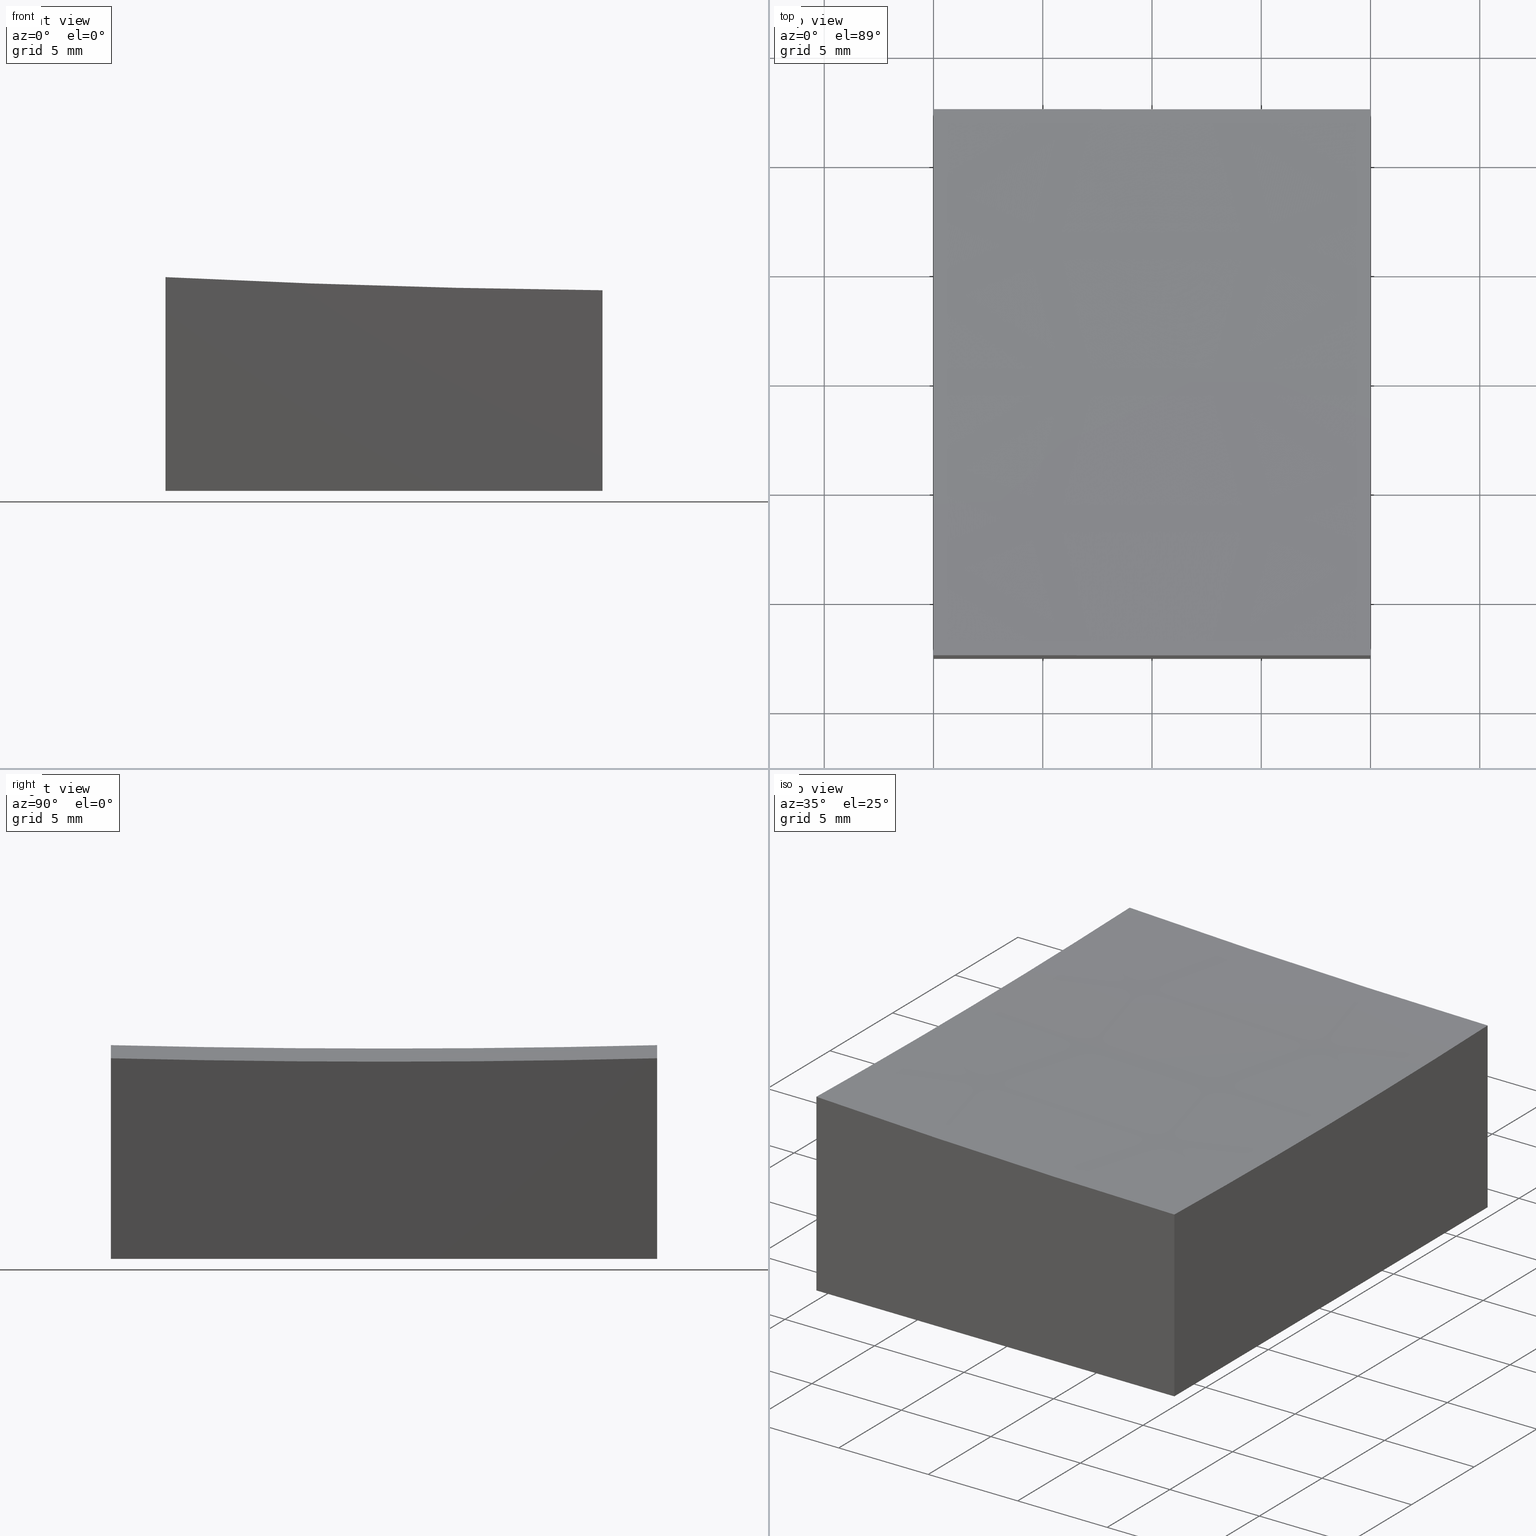
[diagram: canonical four-view strip — front | top / right | iso, engineering-drawing reading convention]
A machine part, canonical four-view strip (front | top / right | iso — engineering-drawing reading convention). The complete STEP part file that produces these views, byte-faithful:
ISO-10303-21;
HEADER;
FILE_DESCRIPTION (( 'STEP AP203' ),
    '1' );
FILE_NAME ('270648.step',
    '2024-12-24T02:22:21',
    ( '' ),
    ( '' ),
    'SwSTEP 2.0',
    'SolidWorks 2020',
    '' );
FILE_SCHEMA (( 'CONFIG_CONTROL_DESIGN' ));
ENDSEC;

DATA;
#1 = EDGE_LOOP ( 'NONE', ( #146, #249, #151, #34 ) ) ;
#2 = DIRECTION ( 'NONE',  ( 1.000000000000000000, 0.000000000000000000, 0.000000000000000000 ) ) ;
#3 = LINE ( 'NONE', #44, #67 ) ;
#4 = CC_DESIGN_APPROVAL ( #238, ( #178 ) ) ;
#5 = ADVANCED_FACE ( 'NONE', ( #215 ), #190, .F. ) ;
#6 = DIRECTION ( 'NONE',  ( 0.000000000000000000, 0.000000000000000000, 1.000000000000000000 ) ) ;
#7 = CARTESIAN_POINT ( 'NONE',  ( -9.999999999999998224, 12.49999999999999645, -10.00000000000000000 ) ) ;
#8 = PERSON ( 'δָ��', 'δָ��', 'δָ��', ('δָ��'), ('δָ��'), ('δָ��') ) ;
#9 = CC_DESIGN_PERSON_AND_ORGANIZATION_ASSIGNMENT ( #218, #105, ( #178 ) ) ;
#10 = CARTESIAN_POINT ( 'NONE',  ( -9.999999999999998224, -12.50000000000000355, -0.2181386928964412775 ) ) ;
#11 = DIRECTION ( 'NONE',  ( 0.000000000000000000, 0.000000000000000000, 1.000000000000000000 ) ) ;
#12 = EDGE_CURVE ( 'NONE', #236, #62, #24, .T. ) ;
#13 = CARTESIAN_POINT ( 'NONE',  ( 10.00000000000000178, -12.50000000000000000, -10.00000000000000000 ) ) ;
#14 = DIRECTION ( 'NONE',  ( 0.000000000000000000, 0.000000000000000000, -1.000000000000000000 ) ) ;
#15 = CIRCLE ( 'NONE', #145, 499.8437255783051114 ) ;
#16 = DIRECTION ( 'NONE',  ( -1.734723475976807094E-16, 1.000000000000000000, 0.000000000000000000 ) ) ;
#17 = EDGE_LOOP ( 'NONE', ( #276, #235, #233, #170 ) ) ;
#18 = EDGE_LOOP ( 'NONE', ( #113, #21, #187, #148, #273 ) ) ;
#19 = COORDINATED_UNIVERSAL_TIME_OFFSET ( 8, 0, .AHEAD. ) ;
#20 = VECTOR ( 'NONE', #200, 1000.000000000000000 ) ;
#21 = ORIENTED_EDGE ( 'NONE', *, *, #73, .T. ) ;
#22 = PERSON_AND_ORGANIZATION ( #8, #46 ) ;
#23 = CARTESIAN_POINT ( 'NONE',  ( 10.00000000000000178, -12.50000000000000000, -0.8187171365233725240 ) ) ;
#24 = CIRCLE ( 'NONE', #27, 499.8437255783051114 ) ;
#25 = DIRECTION ( 'NONE',  ( -1.000000000000000000, 0.000000000000000000, 0.000000000000000000 ) ) ;
#26 = CC_DESIGN_DATE_AND_TIME_ASSIGNMENT ( #86, #216, ( #178 ) ) ;
#27 = AXIS2_PLACEMENT_3D ( 'NONE', #111, #16, #90 ) ;
#28 = DIRECTION ( 'NONE',  ( 1.000000000000000000, 1.734723475976807094E-16, 0.000000000000000000 ) ) ;
#29 = DIRECTION ( 'NONE',  ( 1.000000000000000000, 0.000000000000000000, 0.000000000000000000 ) ) ;
#30 = CARTESIAN_POINT ( 'NONE',  ( 15.00000000000006395, 0.000000000000000000, 499.0000000000000000 ) ) ;
#31 = DIRECTION ( 'NONE',  ( 0.000000000000000000, 0.000000000000000000, -1.000000000000000000 ) ) ;
#32 = DATE_AND_TIME ( #166, #48 ) ;
#33 = AXIS2_PLACEMENT_3D ( 'NONE', #177, #263, #120 ) ;
#34 = ORIENTED_EDGE ( 'NONE', *, *, #248, .T. ) ;
#35 = APPROVAL_DATE_TIME ( #234, #238 ) ;
#36 = CARTESIAN_POINT ( 'NONE',  ( 10.00000000000000178, -12.50000000000000000, 10.00000000000000000 ) ) ;
#37 = ORIENTED_EDGE ( 'NONE', *, *, #61, .F. ) ;
#38 = COORDINATED_UNIVERSAL_TIME_OFFSET ( 8, 0, .AHEAD. ) ;
#39 = AXIS2_PLACEMENT_3D ( 'NONE', #116, #25, #6 ) ;
#40 = EDGE_CURVE ( 'NONE', #129, #183, #65, .T. ) ;
#41 = EDGE_LOOP ( 'NONE', ( #150, #132, #108, #64 ) ) ;
#42 = PERSON_AND_ORGANIZATION ( #8, #46 ) ;
#43 = MECHANICAL_CONTEXT ( 'NONE', #53, 'mechanical' ) ;
#44 = CARTESIAN_POINT ( 'NONE',  ( -9.999999999999998224, -12.50000000000000355, 10.00000000000000000 ) ) ;
#45 = DIRECTION ( 'NONE',  ( 0.000000000000000000, 0.000000000000000000, 1.000000000000000000 ) ) ;
#46 = ORGANIZATION ( 'δָ��', 'δָ��', '' ) ;
#47 = FACE_OUTER_BOUND ( 'NONE', #88, .T. ) ;
#48 = LOCAL_TIME ( 10, 22, 21.00000000000000000, #58 ) ;
#49 = VECTOR ( 'NONE', #266, 1000.000000000000000 ) ;
#50 = CARTESIAN_POINT ( 'NONE',  ( 10.00000000000000178, 12.50000000000000000, 10.00000000000000000 ) ) ;
#51 = ADVANCED_FACE ( 'NONE', ( #122 ), #223, .F. ) ;
#52 = CARTESIAN_POINT ( 'NONE',  ( 10.00000000000000178, 12.50000000000000000, -10.00000000000000000 ) ) ;
#53 = APPLICATION_CONTEXT ( 'configuration controlled 3d designs of mechanical parts and assemblies' ) ;
#54 = LINE ( 'NONE', #13, #257 ) ;
#55 = CARTESIAN_POINT ( 'NONE',  ( 10.00000000000000178, -12.50000000000000000, -10.00000000000000000 ) ) ;
#56 = AXIS2_PLACEMENT_3D ( 'NONE', #101, #179, #31 ) ;
#57 = ADVANCED_FACE ( 'NONE', ( #268 ), #201, .F. ) ;
#58 = COORDINATED_UNIVERSAL_TIME_OFFSET ( 8, 0, .AHEAD. ) ;
#59 = PRODUCT_DEFINITION_SHAPE ( 'NONE', 'NONE',  #253 ) ;
#60 = ORIENTED_EDGE ( 'NONE', *, *, #208, .F. ) ;
#61 = EDGE_CURVE ( 'NONE', #212, #183, #246, .T. ) ;
#62 = VERTEX_POINT ( 'NONE', #10 ) ;
#63 = DATE_AND_TIME ( #112, #269 ) ;
#64 = ORIENTED_EDGE ( 'NONE', *, *, #262, .F. ) ;
#65 = LINE ( 'NONE', #50, #142 ) ;
#66 = PERSON_AND_ORGANIZATION_ROLE ( 'design_supplier' ) ;
#67 = VECTOR ( 'NONE', #92, 1000.000000000000000 ) ;
#68 = APPROVAL ( #114, 'δָ��' ) ;
#69 = PERSON_AND_ORGANIZATION_ROLE ( 'design_owner' ) ;
#70 = PLANE ( 'NONE',  #94 ) ;
#71 = CARTESIAN_POINT ( 'NONE',  ( -9.999999999999998224, -12.50000000000000355, 10.00000000000000000 ) ) ;
#72 = LOCAL_TIME ( 10, 22, 21.00000000000000000, #38 ) ;
#73 = EDGE_CURVE ( 'NONE', #129, #185, #265, .T. ) ;
#74 = PLANE ( 'NONE',  #33 ) ;
#75 = ADVANCED_BREP_SHAPE_REPRESENTATION ( '270648', ( #164, #104 ), #121 ) ;
#76 = AXIS2_PLACEMENT_3D ( 'NONE', #228, #118, #28 ) ;
#77 = DIRECTION ( 'NONE',  ( -1.000000000000000000, 0.000000000000000000, 1.110223024625156787E-16 ) ) ;
#78 = DIRECTION ( 'NONE',  ( -1.000000000000000000, 0.000000000000000000, 0.000000000000000000 ) ) ;
#79 = AXIS2_PLACEMENT_3D ( 'NONE', #36, #206, #127 ) ;
#80 = LINE ( 'NONE', #140, #20 ) ;
#81 = PRODUCT_RELATED_PRODUCT_CATEGORY ( 'detail', '', ( #144 ) ) ;
#82 = APPROVAL_STATUS ( 'not_yet_approved' ) ;
#83 = EDGE_CURVE ( 'NONE', #165, #217, #143, .T. ) ;
#84 = ORIENTED_EDGE ( 'NONE', *, *, #199, .T. ) ;
#85 = ORIENTED_EDGE ( 'NONE', *, *, #93, .T. ) ;
#86 = DATE_AND_TIME ( #189, #275 ) ;
#87 = AXIS2_PLACEMENT_3D ( 'NONE', #226, #29, #14 ) ;
#88 = EDGE_LOOP ( 'NONE', ( #60, #168, #37, #109 ) ) ;
#89 = SHAPE_DEFINITION_REPRESENTATION ( #59, #75 ) ;
#90 = DIRECTION ( 'NONE',  ( -1.000000000000000000, -1.735265831305355409E-16, 0.000000000000000000 ) ) ;
#91 = APPROVAL_DATE_TIME ( #152, #68 ) ;
#92 = DIRECTION ( 'NONE',  ( -0.000000000000000000, -0.000000000000000000, -1.000000000000000000 ) ) ;
#93 = EDGE_CURVE ( 'NONE', #107, #165, #186, .T. ) ;
#94 = AXIS2_PLACEMENT_3D ( 'NONE', #71, #194, #134 ) ;
#95 =( NAMED_UNIT ( * ) SI_UNIT ( $, .STERADIAN. ) SOLID_ANGLE_UNIT ( ) );
#96 = EDGE_CURVE ( 'NONE', #107, #185, #225, .T. ) ;
#97 = FACE_OUTER_BOUND ( 'NONE', #188, .T. ) ;
#98 = CARTESIAN_POINT ( 'NONE',  ( 10.00000000000000178, -12.50000000000000000, -10.00000000000000000 ) ) ;
#99 = CARTESIAN_POINT ( 'NONE',  ( -9.999999999999998224, 12.49999999999999645, 10.00000000000000000 ) ) ;
#100 = FACE_OUTER_BOUND ( 'NONE', #41, .T. ) ;
#101 = CARTESIAN_POINT ( 'NONE',  ( -10.00000000000000000, 0.000000000000000000, 499.0000000000000000 ) ) ;
#102 = DIRECTION ( 'NONE',  ( -0.000000000000000000, -0.000000000000000000, -1.000000000000000000 ) ) ;
#103 = UNCERTAINTY_MEASURE_WITH_UNIT (LENGTH_MEASURE( 1.000000000000000082E-05 ), #193, 'distance_accuracy_value', 'NONE');
#104 = AXIS2_PLACEMENT_3D ( 'NONE', #156, #45, #2 ) ;
#105 = PERSON_AND_ORGANIZATION_ROLE ( 'classification_officer' ) ;
#106 = ADVANCED_FACE ( 'NONE', ( #198 ), #74, .F. ) ;
#107 = VERTEX_POINT ( 'NONE', #162 ) ;
#108 = ORIENTED_EDGE ( 'NONE', *, *, #12, .F. ) ;
#109 = ORIENTED_EDGE ( 'NONE', *, *, #115, .F. ) ;
#110 = AXIS2_PLACEMENT_3D ( 'NONE', #260, #171, #155 ) ;
#111 = CARTESIAN_POINT ( 'NONE',  ( 15.00000000000006573, -12.49999999999999822, 499.0000000000000000 ) ) ;
#112 = CALENDAR_DATE ( 2024, 24, 12 ) ;
#113 = ORIENTED_EDGE ( 'NONE', *, *, #40, .F. ) ;
#114 = APPROVAL_STATUS ( 'not_yet_approved' ) ;
#115 = EDGE_CURVE ( 'NONE', #126, #212, #54, .T. ) ;
#116 = CARTESIAN_POINT ( 'NONE',  ( 10.00000000000000178, 0.000000000000000000, 499.0000000000000000 ) ) ;
#117 = VECTOR ( 'NONE', #102, 1000.000000000000000 ) ;
#118 = DIRECTION ( 'NONE',  ( 1.734723475976807094E-16, -1.000000000000000000, 0.000000000000000000 ) ) ;
#119 = DIRECTION ( 'NONE',  ( 0.000000000000000000, -1.000000000000000000, 0.000000000000000000 ) ) ;
#120 = DIRECTION ( 'NONE',  ( -1.000000000000000000, -1.734723475976807094E-16, 0.000000000000000000 ) ) ;
#121 =( GEOMETRIC_REPRESENTATION_CONTEXT ( 3 ) GLOBAL_UNCERTAINTY_ASSIGNED_CONTEXT ( ( #103 ) ) GLOBAL_UNIT_ASSIGNED_CONTEXT ( ( #193, #196, #95 ) ) REPRESENTATION_CONTEXT ( 'NONE', 'WORKASPACE' ) );
#122 = FACE_OUTER_BOUND ( 'NONE', #254, .T. ) ;
#123 = CARTESIAN_POINT ( 'NONE',  ( 15.00000000000006395, 0.000000000000000000, 499.0000000000000000 ) ) ;
#124 = CC_DESIGN_APPROVAL ( #130, ( #138 ) ) ;
#125 = APPROVAL_ROLE ( '' ) ;
#126 = VERTEX_POINT ( 'NONE', #242 ) ;
#127 = DIRECTION ( 'NONE',  ( 0.000000000000000000, 0.000000000000000000, 1.000000000000000000 ) ) ;
#128 = CALENDAR_DATE ( 2024, 24, 12 ) ;
#129 = VERTEX_POINT ( 'NONE', #180 ) ;
#130 = APPROVAL ( #149, 'δָ��' ) ;
#131 = CC_DESIGN_SECURITY_CLASSIFICATION ( #178, ( #138 ) ) ;
#132 = ORIENTED_EDGE ( 'NONE', *, *, #199, .F. ) ;
#133 = APPROVAL_ROLE ( '' ) ;
#134 = DIRECTION ( 'NONE',  ( 0.000000000000000000, 0.000000000000000000, -1.000000000000000000 ) ) ;
#135 = APPLICATION_CONTEXT ( 'configuration controlled 3d designs of mechanical parts and assemblies' ) ;
#136 = DIRECTION ( 'NONE',  ( 0.000000000000000000, 0.000000000000000000, -1.000000000000000000 ) ) ;
#137 = CC_DESIGN_DATE_AND_TIME_ASSIGNMENT ( #63, #211, ( #253 ) ) ;
#138 = PRODUCT_DEFINITION_FORMATION_WITH_SPECIFIED_SOURCE ( '�κ�', '', #144, .NOT_KNOWN. ) ;
#139 = DIRECTION ( 'NONE',  ( -1.000000000000000000, 0.000000000000000000, 1.110223024625156787E-16 ) ) ;
#140 = CARTESIAN_POINT ( 'NONE',  ( 10.00000000000000178, -12.50000000000000000, 10.00000000000000000 ) ) ;
#141 = CARTESIAN_POINT ( 'NONE',  ( 15.00000000000006395, 0.000000000000000000, 499.0000000000000000 ) ) ;
#142 = VECTOR ( 'NONE', #163, 1000.000000000000000 ) ;
#143 = LINE ( 'NONE', #99, #117 ) ;
#144 = PRODUCT ( '270648', '270648', '', ( #43 ) ) ;
#145 = AXIS2_PLACEMENT_3D ( 'NONE', #240, #259, #239 ) ;
#146 = ORIENTED_EDGE ( 'NONE', *, *, #83, .F. ) ;
#147 = APPROVAL_DATE_TIME ( #32, #130 ) ;
#148 = ORIENTED_EDGE ( 'NONE', *, *, #154, .T. ) ;
#149 = APPROVAL_STATUS ( 'not_yet_approved' ) ;
#150 = ORIENTED_EDGE ( 'NONE', *, *, #96, .F. ) ;
#151 = ORIENTED_EDGE ( 'NONE', *, *, #40, .T. ) ;
#152 = DATE_AND_TIME ( #128, #202 ) ;
#153 = APPLICATION_PROTOCOL_DEFINITION ( 'international standard', 'config_control_design', 1994, #53 ) ;
#154 = EDGE_CURVE ( 'NONE', #236, #212, #80, .T. ) ;
#155 = DIRECTION ( 'NONE',  ( 1.000000000000000000, 0.000000000000000000, -0.000000000000000000 ) ) ;
#156 = CARTESIAN_POINT ( 'NONE',  ( 0.000000000000000000, 0.000000000000000000, 0.000000000000000000 ) ) ;
#157 = DIRECTION ( 'NONE',  ( -1.000000000000000000, -1.734723475976807094E-16, 0.000000000000000000 ) ) ;
#158 = VECTOR ( 'NONE', #157, 1000.000000000000000 ) ;
#159 = DIRECTION ( 'NONE',  ( 1.000000000000000000, 1.734723475976807094E-16, -0.000000000000000000 ) ) ;
#160 = DIRECTION ( 'NONE',  ( 0.000000000000000000, 1.000000000000000000, -0.000000000000000000 ) ) ;
#161 = ADVANCED_FACE ( 'NONE', ( #100 ), #264, .F. ) ;
#162 = CARTESIAN_POINT ( 'NONE',  ( -10.00000000000000000, 0.000000000000000000, -0.3746088859544194349 ) ) ;
#163 = DIRECTION ( 'NONE',  ( -0.000000000000000000, -0.000000000000000000, -1.000000000000000000 ) ) ;
#164 = MANIFOLD_SOLID_BREP ( '�г�-��ת8', #195 ) ;
#165 = VERTEX_POINT ( 'NONE', #244 ) ;
#166 = CALENDAR_DATE ( 2024, 24, 12 ) ;
#167 = CIRCLE ( 'NONE', #39, 499.9749993749687178 ) ;
#168 = ORIENTED_EDGE ( 'NONE', *, *, #248, .F. ) ;
#169 = ORIENTED_EDGE ( 'NONE', *, *, #73, .F. ) ;
#170 = ORIENTED_EDGE ( 'NONE', *, *, #115, .T. ) ;
#171 = DIRECTION ( 'NONE',  ( 0.000000000000000000, -0.000000000000000000, 1.000000000000000000 ) ) ;
#172 = AXIS2_PLACEMENT_3D ( 'NONE', #30, #229, #139 ) ;
#173 = PERSON_AND_ORGANIZATION ( #8, #46 ) ;
#174 = PLANE ( 'NONE',  #110 ) ;
#175 = AXIS2_PLACEMENT_3D ( 'NONE', #245, #78, #11 ) ;
#176 = CC_DESIGN_PERSON_AND_ORGANIZATION_ASSIGNMENT ( #173, #69, ( #144 ) ) ;
#177 = CARTESIAN_POINT ( 'NONE',  ( 10.00000000000000178, -12.50000000000000000, 10.00000000000000000 ) ) ;
#178 = SECURITY_CLASSIFICATION ( '', '', #184 ) ;
#179 = DIRECTION ( 'NONE',  ( 1.000000000000000000, 0.000000000000000000, 0.000000000000000000 ) ) ;
#180 = CARTESIAN_POINT ( 'NONE',  ( 10.00000000000000178, 12.50000000000000000, -0.8187171365233725240 ) ) ;
#181 = APPROVAL_PERSON_ORGANIZATION ( #22, #68, #125 ) ;
#182 = PERSON_AND_ORGANIZATION ( #8, #46 ) ;
#183 = VERTEX_POINT ( 'NONE', #52 ) ;
#184 = SECURITY_CLASSIFICATION_LEVEL ( 'unclassified' ) ;
#185 = VERTEX_POINT ( 'NONE', #227 ) ;
#186 = CIRCLE ( 'NONE', #87, 499.3746088859544443 ) ;
#187 = ORIENTED_EDGE ( 'NONE', *, *, #262, .T. ) ;
#188 = EDGE_LOOP ( 'NONE', ( #231, #84, #85, #213, #250 ) ) ;
#189 = CALENDAR_DATE ( 2024, 24, 12 ) ;
#190 = PLANE ( 'NONE',  #79 ) ;
#191 = LINE ( 'NONE', #256, #158 ) ;
#192 = CIRCLE ( 'NONE', #56, 499.3746088859544443 ) ;
#193 =( LENGTH_UNIT ( ) NAMED_UNIT ( * ) SI_UNIT ( .MILLI., .METRE. ) );
#194 = DIRECTION ( 'NONE',  ( 1.000000000000000000, 0.000000000000000000, 0.000000000000000000 ) ) ;
#195 = CLOSED_SHELL ( 'NONE', ( #51, #267, #106, #5, #57, #270, #161 ) ) ;
#196 =( NAMED_UNIT ( * ) PLANE_ANGLE_UNIT ( ) SI_UNIT ( $, .RADIAN. ) );
#197 = AXIS2_PLACEMENT_3D ( 'NONE', #141, #160, #77 ) ;
#198 = FACE_OUTER_BOUND ( 'NONE', #17, .T. ) ;
#199 = EDGE_CURVE ( 'NONE', #62, #107, #192, .T. ) ;
#200 = DIRECTION ( 'NONE',  ( -0.000000000000000000, -0.000000000000000000, -1.000000000000000000 ) ) ;
#201 = PLANE ( 'NONE',  #76 ) ;
#202 = LOCAL_TIME ( 10, 22, 21.00000000000000000, #255 ) ;
#203 = LINE ( 'NONE', #221, #261 ) ;
#204 = CC_DESIGN_PERSON_AND_ORGANIZATION_ASSIGNMENT ( #277, #207, ( #138 ) ) ;
#205 = APPROVAL_PERSON_ORGANIZATION ( #182, #238, #271 ) ;
#206 = DIRECTION ( 'NONE',  ( -1.000000000000000000, 0.000000000000000000, 0.000000000000000000 ) ) ;
#207 = PERSON_AND_ORGANIZATION_ROLE ( 'creator' ) ;
#208 = EDGE_CURVE ( 'NONE', #217, #126, #203, .T. ) ;
#209 = DESIGN_CONTEXT ( 'detailed design', #135, 'design' ) ;
#210 = ORIENTED_EDGE ( 'NONE', *, *, #224, .F. ) ;
#211 = DATE_TIME_ROLE ( 'creation_date' ) ;
#212 = VERTEX_POINT ( 'NONE', #98 ) ;
#213 = ORIENTED_EDGE ( 'NONE', *, *, #83, .T. ) ;
#214 = PERSON_AND_ORGANIZATION ( #8, #46 ) ;
#215 = FACE_OUTER_BOUND ( 'NONE', #18, .T. ) ;
#216 = DATE_TIME_ROLE ( 'classification_date' ) ;
#217 = VERTEX_POINT ( 'NONE', #7 ) ;
#218 = PERSON_AND_ORGANIZATION ( #8, #46 ) ;
#219 = CC_DESIGN_PERSON_AND_ORGANIZATION_ASSIGNMENT ( #214, #66, ( #138 ) ) ;
#220 = APPLICATION_PROTOCOL_DEFINITION ( 'international standard', 'config_control_design', 1994, #135 ) ;
#221 = CARTESIAN_POINT ( 'NONE',  ( -9.999999999999998224, -12.50000000000000355, -10.00000000000000000 ) ) ;
#222 = DIRECTION ( 'NONE',  ( -0.000000000000000000, -1.000000000000000000, -0.000000000000000000 ) ) ;
#223 = SPHERICAL_SURFACE ( 'NONE', #172, 499.9999999999999432 ) ;
#224 = EDGE_CURVE ( 'NONE', #165, #129, #15, .T. ) ;
#225 = CIRCLE ( 'NONE', #243, 499.9999999999999432 ) ;
#226 = CARTESIAN_POINT ( 'NONE',  ( -10.00000000000000000, 0.000000000000000000, 499.0000000000000000 ) ) ;
#227 = CARTESIAN_POINT ( 'NONE',  ( 10.00000000000000178, 0.000000000000000000, -0.9749993749686991507 ) ) ;
#228 = CARTESIAN_POINT ( 'NONE',  ( 10.00000000000000178, 12.50000000000000000, 10.00000000000000000 ) ) ;
#229 = DIRECTION ( 'NONE',  ( 0.000000000000000000, 1.000000000000000000, -0.000000000000000000 ) ) ;
#230 = CC_DESIGN_PERSON_AND_ORGANIZATION_ASSIGNMENT ( #274, #237, ( #253 ) ) ;
#231 = ORIENTED_EDGE ( 'NONE', *, *, #258, .F. ) ;
#232 = CALENDAR_DATE ( 2024, 24, 12 ) ;
#233 = ORIENTED_EDGE ( 'NONE', *, *, #258, .T. ) ;
#234 = DATE_AND_TIME ( #232, #72 ) ;
#235 = ORIENTED_EDGE ( 'NONE', *, *, #12, .T. ) ;
#236 = VERTEX_POINT ( 'NONE', #23 ) ;
#237 = PERSON_AND_ORGANIZATION_ROLE ( 'creator' ) ;
#238 = APPROVAL ( #82, 'δָ��' ) ;
#239 = DIRECTION ( 'NONE',  ( 1.000000000000000000, 1.735265831305355409E-16, 0.000000000000000000 ) ) ;
#240 = CARTESIAN_POINT ( 'NONE',  ( 15.00000000000006217, 12.50000000000000178, 499.0000000000000000 ) ) ;
#241 = CC_DESIGN_APPROVAL ( #68, ( #253 ) ) ;
#242 = CARTESIAN_POINT ( 'NONE',  ( -9.999999999999998224, -12.50000000000000355, -10.00000000000000000 ) ) ;
#243 = AXIS2_PLACEMENT_3D ( 'NONE', #123, #119, #136 ) ;
#244 = CARTESIAN_POINT ( 'NONE',  ( -9.999999999999998224, 12.49999999999999645, -0.2181386928964412775 ) ) ;
#245 = CARTESIAN_POINT ( 'NONE',  ( 10.00000000000000178, 0.000000000000000000, 499.0000000000000000 ) ) ;
#246 = LINE ( 'NONE', #55, #49 ) ;
#247 = APPROVAL_PERSON_ORGANIZATION ( #42, #130, #133 ) ;
#248 = EDGE_CURVE ( 'NONE', #183, #217, #191, .T. ) ;
#249 = ORIENTED_EDGE ( 'NONE', *, *, #224, .T. ) ;
#250 = ORIENTED_EDGE ( 'NONE', *, *, #208, .T. ) ;
#251 = COORDINATED_UNIVERSAL_TIME_OFFSET ( 8, 0, .AHEAD. ) ;
#252 = ORIENTED_EDGE ( 'NONE', *, *, #93, .F. ) ;
#253 = PRODUCT_DEFINITION ( 'δ֪', '', #138, #209 ) ;
#254 = EDGE_LOOP ( 'NONE', ( #252, #272, #169, #210 ) ) ;
#255 = COORDINATED_UNIVERSAL_TIME_OFFSET ( 8, 0, .AHEAD. ) ;
#256 = CARTESIAN_POINT ( 'NONE',  ( 10.00000000000000178, 12.50000000000000000, -10.00000000000000000 ) ) ;
#257 = VECTOR ( 'NONE', #159, 1000.000000000000000 ) ;
#258 = EDGE_CURVE ( 'NONE', #62, #126, #3, .T. ) ;
#259 = DIRECTION ( 'NONE',  ( 1.734723475976807094E-16, -1.000000000000000000, 0.000000000000000000 ) ) ;
#260 = CARTESIAN_POINT ( 'NONE',  ( 0.000000000000000000, 0.000000000000000000, -10.00000000000000000 ) ) ;
#261 = VECTOR ( 'NONE', #222, 1000.000000000000000 ) ;
#262 = EDGE_CURVE ( 'NONE', #185, #236, #167, .T. ) ;
#263 = DIRECTION ( 'NONE',  ( -1.734723475976807094E-16, 1.000000000000000000, 0.000000000000000000 ) ) ;
#264 = SPHERICAL_SURFACE ( 'NONE', #197, 499.9999999999999432 ) ;
#265 = CIRCLE ( 'NONE', #175, 499.9749993749687178 ) ;
#266 = DIRECTION ( 'NONE',  ( 0.000000000000000000, 1.000000000000000000, 0.000000000000000000 ) ) ;
#267 = ADVANCED_FACE ( 'NONE', ( #97 ), #70, .F. ) ;
#268 = FACE_OUTER_BOUND ( 'NONE', #1, .T. ) ;
#269 = LOCAL_TIME ( 10, 22, 21.00000000000000000, #251 ) ;
#270 = ADVANCED_FACE ( 'NONE', ( #47 ), #174, .F. ) ;
#271 = APPROVAL_ROLE ( '' ) ;
#272 = ORIENTED_EDGE ( 'NONE', *, *, #96, .T. ) ;
#273 = ORIENTED_EDGE ( 'NONE', *, *, #61, .T. ) ;
#274 = PERSON_AND_ORGANIZATION ( #8, #46 ) ;
#275 = LOCAL_TIME ( 10, 22, 21.00000000000000000, #19 ) ;
#276 = ORIENTED_EDGE ( 'NONE', *, *, #154, .F. ) ;
#277 = PERSON_AND_ORGANIZATION ( #8, #46 ) ;
ENDSEC;
END-ISO-10303-21;
